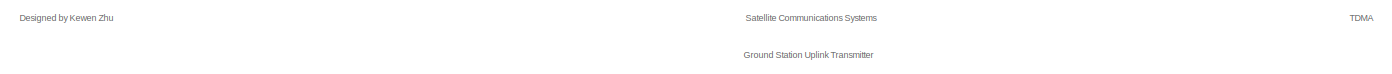
[diagram: root canvas - part 1/2, full width, top band]
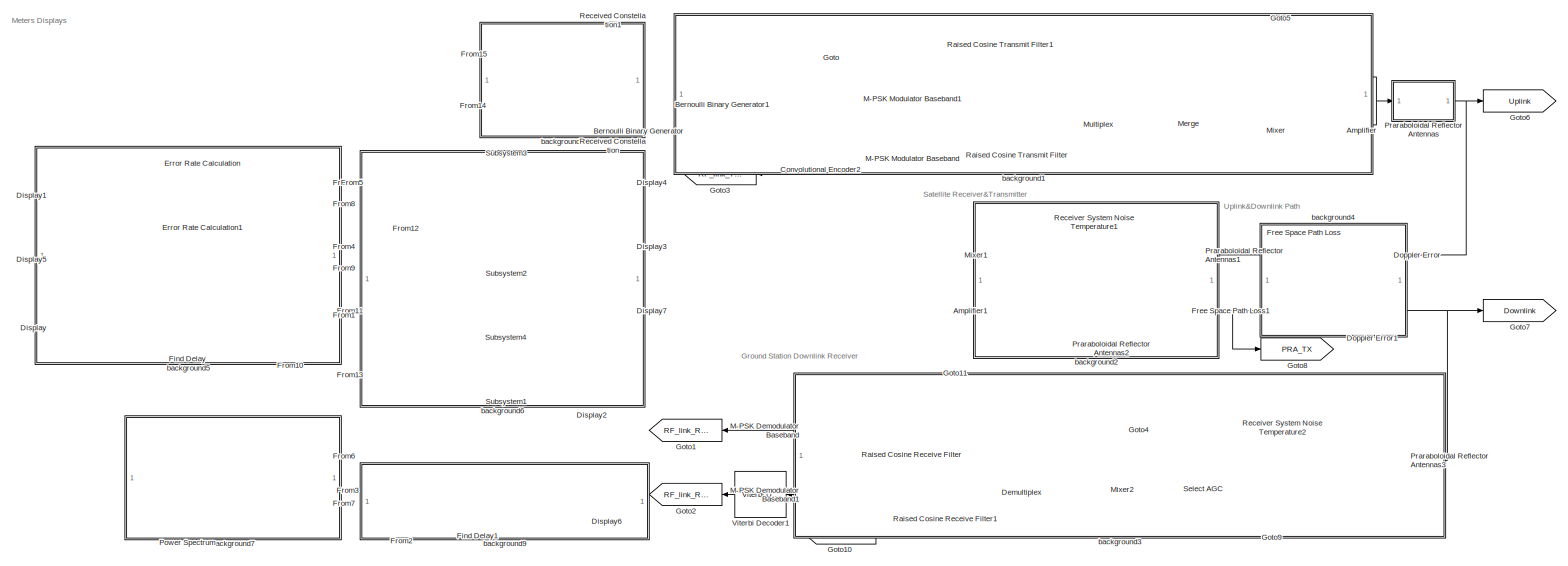
[diagram: root canvas - part 2/2, most of the canvas]
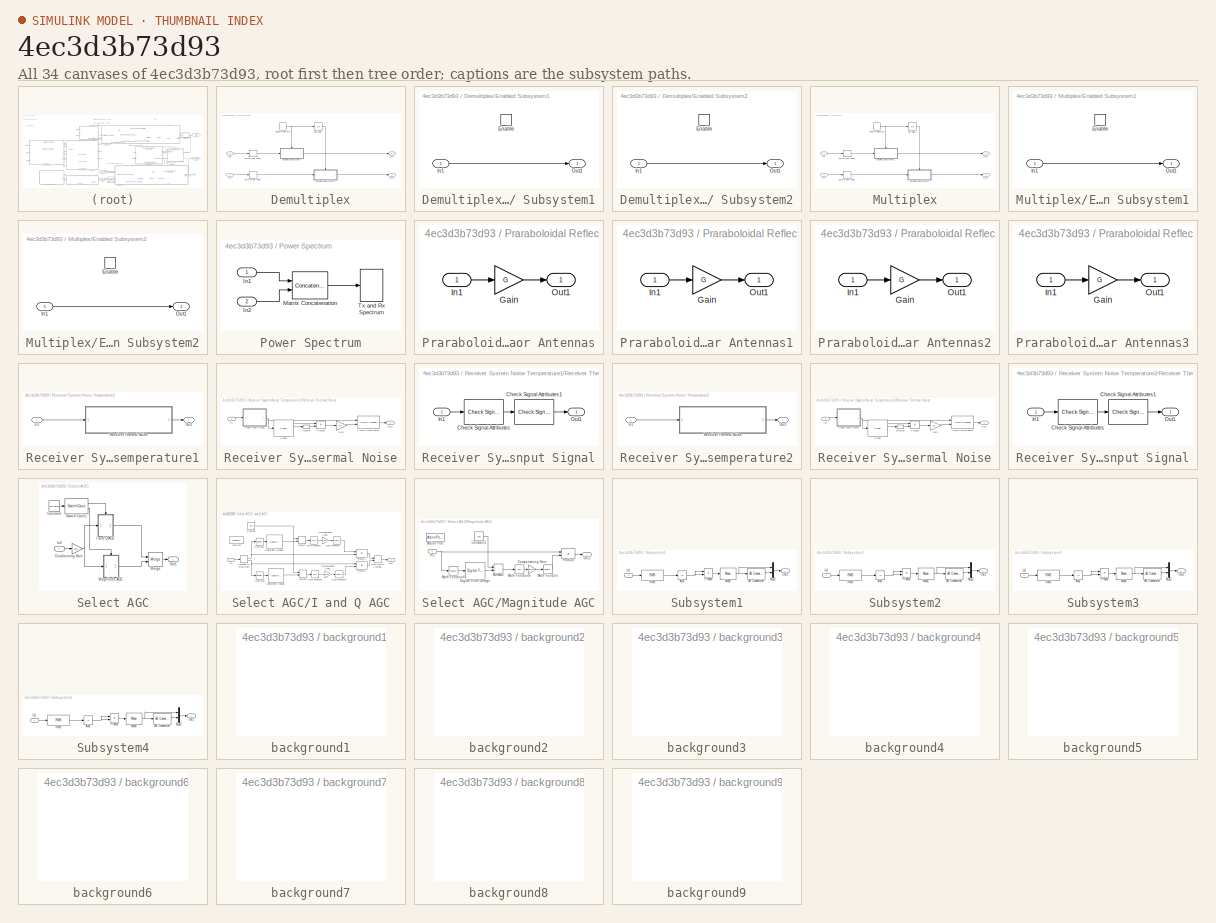
[diagram: thumbnail index - all 34 canvases of the model, root first then tree order]
MODEL slx_4ec3d3b73d93
KIND model
CONFIG AbsTol = auto
CONFIG EnableMultiTasking = on
CONFIG FixedStep = auto
CONFIG MaxStep = auto
CONFIG MinStep = auto
CONFIG RelTol = 1e-3
CONFIG SampleTimeConstraint = Unconstrained
CONFIG Solver = ode45
CONFIG SolverName = ode45
CONFIG StartTime = 0.0
CONFIG StopTime = inf
BLOCK [Reference] Amplifier  REF=rfmathmodels1/Amplifier
  Ports = [1, 1]
  SourceBlock = rfmathmodels1/Amplifier
  SourceProductBaseCode = RB
  SourceProductName = RF Blockset
  SourceType = Amplifier
BLOCK [Reference] Amplifier1  REF=rfmathmodels1/Amplifier
  Ports = [1, 1]
  SourceBlock = rfmathmodels1/Amplifier
  SourceProductBaseCode = RB
  SourceProductName = RF Blockset
  SourceType = Amplifier
BLOCK [Reference] Bernoulli Binary Generator  REF=commrandsrc2/Bernoulli Binary
Generator
  Ports = [0, 1]
  SourceBlock = commrandsrc2/Bernoulli Binary\nGenerator
  SourceProductBaseCode = CM
  SourceProductName = Communications Toolbox
  SourceType = Bernoulli Binary Generator
BLOCK [Reference] Bernoulli Binary Generator1  REF=commrandsrc2/Bernoulli Binary
Generator
  Ports = [0, 1]
  SourceBlock = commrandsrc2/Bernoulli Binary\nGenerator
  SourceProductBaseCode = CM
  SourceProductName = Communications Toolbox
  SourceType = Bernoulli Binary Generator
BLOCK [Reference] Convolutional Encoder2  REF=commcnvcod2/Convolutional
Encoder
  Ports = [1, 1]
  SourceBlock = commcnvcod2/Convolutional\nEncoder
  SourceProductBaseCode = CM
  SourceProductName = Communications Toolbox
  SourceType = Convolutional Encoder
BLOCK [SubSystem] Demultiplex
  Ports = [2, 2]
  RequestExecContextInheritance = off
BLOCK [SubSystem] Demultiplex/Enabled Subsystem1
  Ports = [1, 1, 1]
  RequestExecContextInheritance = off
  TreatAsAtomicUnit = on
BLOCK [EnablePort] Demultiplex/Enabled Subsystem1/Enable
  Ports = []
BLOCK [Inport] Demultiplex/Enabled Subsystem1/In1
  IconDisplay = Port number
BLOCK [Outport] Demultiplex/Enabled Subsystem1/Out1
  IconDisplay = Port number
BLOCK [SubSystem] Demultiplex/Enabled Subsystem2
  Ports = [1, 1, 1]
  RequestExecContextInheritance = off
  TreatAsAtomicUnit = on
BLOCK [EnablePort] Demultiplex/Enabled Subsystem2/Enable
  Ports = []
BLOCK [Inport] Demultiplex/Enabled Subsystem2/In1
  IconDisplay = Port number
BLOCK [Outport] Demultiplex/Enabled Subsystem2/Out1
  IconDisplay = Port number
BLOCK [Inport] Demultiplex/In1
  IconDisplay = Port number
BLOCK [Inport] Demultiplex/In2
  IconDisplay = Port number
  Port = 2
BLOCK [Outport] Demultiplex/Out1
  IconDisplay = Port number
BLOCK [Outport] Demultiplex/Out2
  IconDisplay = Port number
  Port = 2
BLOCK [DiscretePulseGenerator] Demultiplex/Pulse Generator
  Period = 3
  Ports = [0, 1]
  SampleTime = 0.001
BLOCK [UnitDelay] Demultiplex/Unit Delay
  SampleTime = 0.001
BLOCK [ZeroOrderHold] Demultiplex/Zero-Order Hold1
  SampleTime = 0.001
BLOCK [ZeroOrderHold] Demultiplex/Zero-Order Hold2
  SampleTime = 0.001
BLOCK [Display] Display
  Decimation = 1
  Ports = [1]
BLOCK [Display] Display1
  Decimation = 1
  Ports = [1]
BLOCK [Display] Display2
  Decimation = 1
  Ports = [1]
BLOCK [Display] Display3
  Decimation = 1
  Ports = [1]
BLOCK [Display] Display4
  Decimation = 1
  Ports = [1]
BLOCK [Display] Display5
  Decimation = 1
  Ports = [1]
BLOCK [Display] Display6
  Decimation = 1
  Ports = [1]
BLOCK [Display] Display7
  Decimation = 1
  Ports = [1]
BLOCK [Reference] Doppler Error  REF=commrflib2/Phase//
Frequency
Offset
  Ports = [1, 1]
  SourceBlock = commrflib2/Phase//\nFrequency\nOffset
  SourceProductBaseCode = CM
  SourceProductName = Communications Toolbox
  SourceType = Phase/Frequency Offset
BLOCK [Reference] Doppler Error1  REF=commrflib2/Phase//
Frequency
Offset
  Ports = [1, 1]
  SourceBlock = commrflib2/Phase//\nFrequency\nOffset
  SourceProductBaseCode = CM
  SourceProductName = Communications Toolbox
  SourceType = Phase/Frequency Offset
BLOCK [Reference] Error Rate Calculation  REF=commsink2/Error Rate
Calculation
  Ports = [2, 1]
  SourceBlock = commsink2/Error Rate\nCalculation
  SourceProductBaseCode = CM
  SourceProductName = Communications Toolbox
  SourceType = Error Rate Calculation
BLOCK [Reference] Error Rate Calculation1  REF=commsink2/Error Rate
Calculation
  Ports = [2, 1]
  SourceBlock = commsink2/Error Rate\nCalculation
  SourceProductBaseCode = CM
  SourceProductName = Communications Toolbox
  SourceType = Error Rate Calculation
BLOCK [Reference] Find Delay  REF=commutil2/Find Delay
  Ports = [2, 1]
  SourceBlock = commutil2/Find Delay
  SourceProductBaseCode = CM
  SourceProductName = Communications Toolbox
  SourceType = Find Delay
BLOCK [Reference] Find Delay1  REF=commutil2/Find Delay
  Ports = [2, 1]
  SourceBlock = commutil2/Find Delay
  SourceProductBaseCode = CM
  SourceProductName = Communications Toolbox
  SourceType = Find Delay
BLOCK [Reference] Free Space Path Loss  REF=commrflib2/Free Space
Path Loss
  Ports = [1, 1]
  SourceBlock = commrflib2/Free Space\nPath Loss
  SourceProductBaseCode = CM
  SourceProductName = Communications Toolbox
  SourceType = Free Space Path Loss
BLOCK [Reference] Free Space Path Loss1  REF=commrflib2/Free Space
Path Loss
  Ports = [1, 1]
  SourceBlock = commrflib2/Free Space\nPath Loss
  SourceProductBaseCode = CM
  SourceProductName = Communications Toolbox
  SourceType = Free Space Path Loss
BLOCK [From] From
  GotoTag = RF_link_TX1
BLOCK [From] From1
  GotoTag = RF_link_TX1
BLOCK [From] From10
  GotoTag = RF_link_RX1
BLOCK [From] From11
  GotoTag = Downlink
BLOCK [From] From12
  GotoTag = PRA_TX
BLOCK [From] From13
  GotoTag = PRA_RX
BLOCK [From] From14
  GotoTag = RX2_const
BLOCK [From] From15
  GotoTag = RX1_const
BLOCK [From] From2
  GotoTag = RF_link_TX1
BLOCK [From] From3
  GotoTag = RF_link_TX2
BLOCK [From] From4
  GotoTag = RF_link_TX2
BLOCK [From] From5
  GotoTag = Uplink
BLOCK [From] From6
  GotoTag = TX_FDMA
BLOCK [From] From7
  GotoTag = RX_FDMA
BLOCK [From] From8
  GotoTag = RF_link_RX1
BLOCK [From] From9
  GotoTag = RF_link_RX2
BLOCK [Goto] Goto
  GotoTag = RF_link_TX1
BLOCK [Goto] Goto1
  GotoTag = RF_link_RX1
BLOCK [Goto] Goto10
  GotoTag = RX2_const
BLOCK [Goto] Goto11
  GotoTag = RX1_const
BLOCK [Goto] Goto2
  GotoTag = RF_link_RX2
BLOCK [Goto] Goto3
  GotoTag = RF_link_TX2
BLOCK [Goto] Goto4
  GotoTag = RX_FDMA
BLOCK [Goto] Goto5
  GotoTag = TX_FDMA
BLOCK [Goto] Goto6
  GotoTag = Uplink
BLOCK [Goto] Goto7
  GotoTag = Downlink
BLOCK [Goto] Goto8
  GotoTag = PRA_TX
BLOCK [Goto] Goto9
  GotoTag = PRA_RX
BLOCK [Reference] M-PSK Demodulator Baseband  REF=commdigbbndpm3/M-PSK
Demodulator
Baseband
  Ports = [1, 1]
  SourceBlock = commdigbbndpm3/M-PSK\nDemodulator\nBaseband
  SourceProductBaseCode = CM
  SourceProductName = Communications Toolbox
  SourceType = M-PSK Demodulator Baseband
BLOCK [Reference] M-PSK Demodulator Baseband1  REF=commdigbbndpm3/M-PSK
Demodulator
Baseband
  Ports = [1, 1]
  SourceBlock = commdigbbndpm3/M-PSK\nDemodulator\nBaseband
  SourceProductBaseCode = CM
  SourceProductName = Communications Toolbox
  SourceType = M-PSK Demodulator Baseband
BLOCK [Reference] M-PSK Modulator Baseband  REF=commdigbbndpm3/M-PSK
Modulator
Baseband
  Ports = [1, 1]
  SourceBlock = commdigbbndpm3/M-PSK\nModulator\nBaseband
  SourceProductBaseCode = CM
  SourceProductName = Communications Toolbox
  SourceType = M-PSK Modulator Baseband
BLOCK [Reference] M-PSK Modulator Baseband1  REF=commdigbbndpm3/M-PSK
Modulator
Baseband
  Ports = [1, 1]
  SourceBlock = commdigbbndpm3/M-PSK\nModulator\nBaseband
  SourceProductBaseCode = CM
  SourceProductName = Communications Toolbox
  SourceType = M-PSK Modulator Baseband
BLOCK [Merge] Merge
  Ports = [2, 1]
BLOCK [Reference] Mixer  REF=rfmathmodels1/Mixer
  Ports = [1, 1]
  SourceBlock = rfmathmodels1/Mixer
  SourceProductBaseCode = RB
  SourceProductName = RF Blockset
  SourceType = Mixer
BLOCK [Reference] Mixer1  REF=rfmathmodels1/Mixer
  Ports = [1, 1]
  SourceBlock = rfmathmodels1/Mixer
  SourceProductBaseCode = RB
  SourceProductName = RF Blockset
  SourceType = Mixer
BLOCK [Reference] Mixer2  REF=rfmathmodels1/Mixer
  Ports = [1, 1]
  SourceBlock = rfmathmodels1/Mixer
  SourceProductBaseCode = RB
  SourceProductName = RF Blockset
  SourceType = Mixer
BLOCK [SubSystem] Multiplex
  Ports = [2, 2]
  RequestExecContextInheritance = off
BLOCK [SubSystem] Multiplex/Enabled Subsystem1
  Ports = [1, 1, 1]
  RequestExecContextInheritance = off
  TreatAsAtomicUnit = on
BLOCK [EnablePort] Multiplex/Enabled Subsystem1/Enable
  Ports = []
BLOCK [Inport] Multiplex/Enabled Subsystem1/In1
  IconDisplay = Port number
BLOCK [Outport] Multiplex/Enabled Subsystem1/Out1
  IconDisplay = Port number
BLOCK [SubSystem] Multiplex/Enabled Subsystem2
  Ports = [1, 1, 1]
  RequestExecContextInheritance = off
  TreatAsAtomicUnit = on
BLOCK [EnablePort] Multiplex/Enabled Subsystem2/Enable
  Ports = []
BLOCK [Inport] Multiplex/Enabled Subsystem2/In1
  IconDisplay = Port number
BLOCK [Outport] Multiplex/Enabled Subsystem2/Out1
  IconDisplay = Port number
BLOCK [Inport] Multiplex/In1
  IconDisplay = Port number
BLOCK [Inport] Multiplex/In2
  IconDisplay = Port number
  Port = 2
BLOCK [Outport] Multiplex/Out1
  IconDisplay = Port number
BLOCK [Outport] Multiplex/Out2
  IconDisplay = Port number
  Port = 2
BLOCK [DiscretePulseGenerator] Multiplex/Pulse Generator
  Period = 3
  Ports = [0, 1]
  SampleTime = 0.001
BLOCK [UnitDelay] Multiplex/Unit Delay
  SampleTime = 0.001
BLOCK [ZeroOrderHold] Multiplex/Zero-Order Hold1
  SampleTime = 0.001
BLOCK [ZeroOrderHold] Multiplex/Zero-Order Hold2
  SampleTime = 0.001
BLOCK [SubSystem] Power Spectrum
  Ports = [2]
  RequestExecContextInheritance = off
  TreatAsAtomicUnit = on
BLOCK [Inport] Power Spectrum/In1
  IconDisplay = Port number
BLOCK [Inport] Power Spectrum/In2
  IconDisplay = Port number
  Port = 2
BLOCK [Concatenate] Power Spectrum/Matrix Concatenation
  ConcatenateDimension = 2
  Mode = Multidimensional array
  Ports = [2, 1]
BLOCK [SpectrumAnalyzer] Power Spectrum/Tx and Rx Spectrum
  AttributesFormatString = \n
  Ports = [1]
  ScopeSpecificationString = spbscopes.SpectrumAnalyzerBlockCfg('CurrentConfiguration', extmgr.ConfigurationSet(extmgr.Configuration('Core','General UI',true),extmgr.Configuration('Core','Source UI',true),extmgr.Configuration('Sources','WiredSimulink',true),extmgr.Configuration('Visuals','Spectrum',true,'AxesProperties',struct('Color',{[0 0 0],[0 0 0]},'XColor',{[0.686274509803922 0.686274509803922 0.686274509803922],[0.68627...<+3188ch>
BLOCK [SubSystem] Praraboloidal Reflector Antennas
  Ports = [1, 1]
  RequestExecContextInheritance = off
BLOCK [Gain] Praraboloidal Reflector Antennas/Gain
  Gain = G
  OutDataTypeStr = Inherit: Inherit via internal rule
  ParamDataTypeStr = Inherit: Inherit via internal rule
  SaturateOnIntegerOverflow = off
BLOCK [Inport] Praraboloidal Reflector Antennas/In1
  IconDisplay = Port number
BLOCK [Outport] Praraboloidal Reflector Antennas/Out1
  IconDisplay = Port number
BLOCK [SubSystem] Praraboloidal Reflector Antennas1
  Ports = [1, 1]
  RequestExecContextInheritance = off
BLOCK [Gain] Praraboloidal Reflector Antennas1/Gain
  Gain = G
  OutDataTypeStr = Inherit: Inherit via internal rule
  ParamDataTypeStr = Inherit: Inherit via internal rule
  SaturateOnIntegerOverflow = off
BLOCK [Inport] Praraboloidal Reflector Antennas1/In1
  IconDisplay = Port number
BLOCK [Outport] Praraboloidal Reflector Antennas1/Out1
  IconDisplay = Port number
BLOCK [SubSystem] Praraboloidal Reflector Antennas2
  Ports = [1, 1]
  RequestExecContextInheritance = off
BLOCK [Gain] Praraboloidal Reflector Antennas2/Gain
  Gain = G
  OutDataTypeStr = Inherit: Inherit via internal rule
  ParamDataTypeStr = Inherit: Inherit via internal rule
  SaturateOnIntegerOverflow = off
BLOCK [Inport] Praraboloidal Reflector Antennas2/In1
  IconDisplay = Port number
BLOCK [Outport] Praraboloidal Reflector Antennas2/Out1
  IconDisplay = Port number
BLOCK [SubSystem] Praraboloidal Reflector Antennas3
  Ports = [1, 1]
  RequestExecContextInheritance = off
BLOCK [Gain] Praraboloidal Reflector Antennas3/Gain
  Gain = G
  OutDataTypeStr = Inherit: Inherit via internal rule
  ParamDataTypeStr = Inherit: Inherit via internal rule
  SaturateOnIntegerOverflow = off
BLOCK [Inport] Praraboloidal Reflector Antennas3/In1
  IconDisplay = Port number
BLOCK [Outport] Praraboloidal Reflector Antennas3/Out1
  IconDisplay = Port number
BLOCK [Reference] Raised Cosine Receive Filter  REF=commfilt2/Raised Cosine
Receive Filter
  Ports = [1, 1]
  SourceBlock = commfilt2/Raised Cosine\nReceive Filter
  SourceProductBaseCode = CM
  SourceProductName = Communications Toolbox
  SourceType = Raised Cosine Receive Filter
  UserDataPersistent = on
BLOCK [Reference] Raised Cosine Receive Filter1  REF=commfilt2/Raised Cosine
Receive Filter
  Ports = [1, 1]
  SourceBlock = commfilt2/Raised Cosine\nReceive Filter
  SourceProductBaseCode = CM
  SourceProductName = Communications Toolbox
  SourceType = Raised Cosine Receive Filter
  UserDataPersistent = on
BLOCK [Reference] Raised Cosine Transmit Filter  REF=commfilt2/Raised Cosine
Transmit Filter
  Ports = [1, 1]
  SourceBlock = commfilt2/Raised Cosine\nTransmit Filter
  SourceProductBaseCode = CM
  SourceProductName = Communications Toolbox
  SourceType = Raised Cosine Transmit Filter
  UserDataPersistent = on
BLOCK [Reference] Raised Cosine Transmit Filter1  REF=commfilt2/Raised Cosine
Transmit Filter
  Ports = [1, 1]
  SourceBlock = commfilt2/Raised Cosine\nTransmit Filter
  SourceProductBaseCode = CM
  SourceProductName = Communications Toolbox
  SourceType = Raised Cosine Transmit Filter
  UserDataPersistent = on
BLOCK [ConstellationDiagram] Received Constellation
  Ports = [1]
  ScopeSpecificationString = comm.scopes.ConstellationDiagramBlockCfg('CurrentConfiguration', extmgr.ConfigurationSet(extmgr.Configuration('Core','General UI',true,'ShowConfiguration',true),extmgr.Configuration('Core','Source UI',true,'ShowPlaybackCmdMode',false),extmgr.Configuration('Sources','WiredSimulink',true),extmgr.Configuration('Sources','Workspace',false),extmgr.Configuration('Sources','Simulink',false),extmgr.Config...<+2281ch>
  Tag = ScatterPlot
BLOCK [ConstellationDiagram] Received Constellation1
  Ports = [1]
  ScopeSpecificationString = comm.scopes.ConstellationDiagramBlockCfg('CurrentConfiguration', extmgr.ConfigurationSet(extmgr.Configuration('Core','General UI',true,'ShowConfiguration',true),extmgr.Configuration('Core','Source UI',true,'ShowPlaybackCmdMode',false),extmgr.Configuration('Sources','WiredSimulink',true),extmgr.Configuration('Sources','Workspace',false),extmgr.Configuration('Sources','Simulink',false),extmgr.Config...<+2231ch>
  Tag = ScatterPlot
BLOCK [SubSystem] Receiver System Noise Temperature1
  AncestorBlock = xd/RF/Receiver System\nNoise Temperature
  Ports = [1, 1]
  RequestExecContextInheritance = off
  TreatAsAtomicUnit = on
BLOCK [Inport] Receiver System Noise Temperature1/In1
  IconDisplay = Port number
BLOCK [Outport] Receiver System Noise Temperature1/Out1
  IconDisplay = Port number
BLOCK [SubSystem] Receiver System Noise Temperature1/Receiver Thermal Noise
  AncestorBlock = commrflib2/Receiver\nThermal Noise
  Ports = [1, 1]
  RequestExecContextInheritance = off
BLOCK [Reference] Receiver System Noise Temperature1/Receiver Thermal Noise/AWGN Noise Temp  REF=commchan3/AWGN
Channel
  Ports = [2, 1]
  SourceBlock = commchan3/AWGN\nChannel
  SourceProductBaseCode = CM
  SourceProductName = Communications Toolbox
  SourceType = AWGN Channel
  UserDataPersistent = on
BLOCK [SubSystem] Receiver System Noise Temperature1/Receiver Thermal Noise/Check Input Signal
  Ports = [1, 1]
  RequestExecContextInheritance = off
BLOCK [Reference] Receiver System Noise Temperature1/Receiver Thermal Noise/Check Input Signal/Check Signal Attributes  REF=dspsigattribs/Check Signal
Attributes
  Ports = [1, 1]
  SourceBlock = dspsigattribs/Check Signal\nAttributes
  SourceProductBaseCode = DS
  SourceProductName = DSP System Toolbox
  SourceType = Check Signal Attributes
BLOCK [Reference] Receiver System Noise Temperature1/Receiver Thermal Noise/Check Input Signal/Check Signal Attributes1  REF=dspsigattribs/Check Signal
Attributes
  Ports = [1, 1]
  SourceBlock = dspsigattribs/Check Signal\nAttributes
  SourceProductBaseCode = DS
  SourceProductName = DSP System Toolbox
  SourceType = Check Signal Attributes
BLOCK [Inport] Receiver System Noise Temperature1/Receiver Thermal Noise/Check Input Signal/In1
  IconDisplay = Port number
BLOCK [Outport] Receiver System Noise Temperature1/Receiver Thermal Noise/Check Input Signal/Out1
  IconDisplay = Port number
BLOCK [Gain] Receiver System Noise Temperature1/Receiver Thermal Noise/Gain
  Gain = kT
BLOCK [Inport] Receiver System Noise Temperature1/Receiver Thermal Noise/In1
  IconDisplay = Port number
BLOCK [Outport] Receiver System Noise Temperature1/Receiver Thermal Noise/Out1
  IconDisplay = Port number
BLOCK [Probe] Receiver System Noise Temperature1/Receiver Thermal Noise/Probe
  Ports = [1, 2]
  ProbeComplexSignal = off
  ProbeSampleTimeDataType = Same as input
  ProbeWidthDataType = Same as input
BLOCK [Product] Receiver System Noise Temperature1/Receiver Thermal Noise/Product
  Inputs = */
  Ports = [2, 1]
  RndMeth = Floor
BLOCK [Selector] Receiver System Noise Temperature1/Receiver Thermal Noise/Selector
  IndexOptions = Index vector (dialog)
  Indices = 1
  InputPortWidth = 2
  OutputSizes = 1
  Ports = [1, 1]
BLOCK [SubSystem] Receiver System Noise Temperature2
  AncestorBlock = xd/RF/Receiver System\nNoise Temperature
  Ports = [1, 1]
  RequestExecContextInheritance = off
  TreatAsAtomicUnit = on
BLOCK [Inport] Receiver System Noise Temperature2/In1
  IconDisplay = Port number
BLOCK [Outport] Receiver System Noise Temperature2/Out1
  IconDisplay = Port number
BLOCK [SubSystem] Receiver System Noise Temperature2/Receiver Thermal Noise
  AncestorBlock = commrflib2/Receiver\nThermal Noise
  Ports = [1, 1]
  RequestExecContextInheritance = off
BLOCK [Reference] Receiver System Noise Temperature2/Receiver Thermal Noise/AWGN Noise Temp  REF=commchan3/AWGN
Channel
  Ports = [2, 1]
  SourceBlock = commchan3/AWGN\nChannel
  SourceProductBaseCode = CM
  SourceProductName = Communications Toolbox
  SourceType = AWGN Channel
  UserDataPersistent = on
BLOCK [SubSystem] Receiver System Noise Temperature2/Receiver Thermal Noise/Check Input Signal
  Ports = [1, 1]
  RequestExecContextInheritance = off
BLOCK [Reference] Receiver System Noise Temperature2/Receiver Thermal Noise/Check Input Signal/Check Signal Attributes  REF=dspsigattribs/Check Signal
Attributes
  Ports = [1, 1]
  SourceBlock = dspsigattribs/Check Signal\nAttributes
  SourceProductBaseCode = DS
  SourceProductName = DSP System Toolbox
  SourceType = Check Signal Attributes
BLOCK [Reference] Receiver System Noise Temperature2/Receiver Thermal Noise/Check Input Signal/Check Signal Attributes1  REF=dspsigattribs/Check Signal
Attributes
  Ports = [1, 1]
  SourceBlock = dspsigattribs/Check Signal\nAttributes
  SourceProductBaseCode = DS
  SourceProductName = DSP System Toolbox
  SourceType = Check Signal Attributes
BLOCK [Inport] Receiver System Noise Temperature2/Receiver Thermal Noise/Check Input Signal/In1
  IconDisplay = Port number
BLOCK [Outport] Receiver System Noise Temperature2/Receiver Thermal Noise/Check Input Signal/Out1
  IconDisplay = Port number
BLOCK [Gain] Receiver System Noise Temperature2/Receiver Thermal Noise/Gain
  Gain = kT
BLOCK [Inport] Receiver System Noise Temperature2/Receiver Thermal Noise/In1
  IconDisplay = Port number
BLOCK [Outport] Receiver System Noise Temperature2/Receiver Thermal Noise/Out1
  IconDisplay = Port number
BLOCK [Probe] Receiver System Noise Temperature2/Receiver Thermal Noise/Probe
  Ports = [1, 2]
  ProbeComplexSignal = off
  ProbeSampleTimeDataType = Same as input
  ProbeWidthDataType = Same as input
BLOCK [Product] Receiver System Noise Temperature2/Receiver Thermal Noise/Product
  Inputs = */
  Ports = [2, 1]
  RndMeth = Floor
BLOCK [Selector] Receiver System Noise Temperature2/Receiver Thermal Noise/Selector
  IndexOptions = Index vector (dialog)
  Indices = 1
  InputPortWidth = 2
  OutputSizes = 1
  Ports = [1, 1]
BLOCK [SubSystem] Select AGC
  Ports = [1, 1]
  RequestExecContextInheritance = off
BLOCK [Gain] Select AGC/Conditioning Gain
  Gain = 1e6
BLOCK [Constant] Select AGC/Constant
  Value = selValue
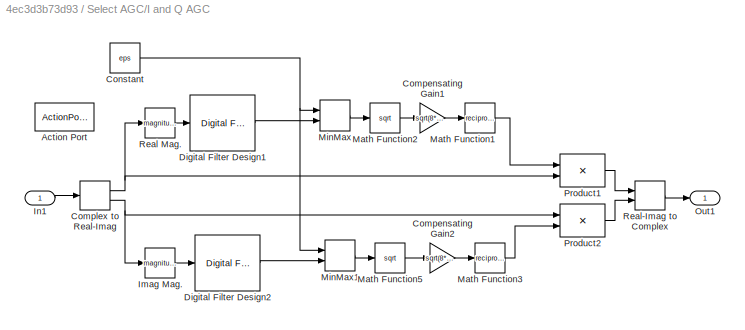
BLOCK [SubSystem] Select AGC/I and Q AGC
  Ports = [1, 1, 0, 0, 0, 0, 0, 1]
  RequestExecContextInheritance = off
  TreatAsAtomicUnit = on
BLOCK [ActionPort] Select AGC/I and Q AGC/Action Port
  ActionPortLabel = case [ 1 ]:
  PropagateVarSize = During execution
BLOCK [Gain] Select AGC/I and Q AGC/Compensating Gain1
  Gain = sqrt(8*2)
BLOCK [Gain] Select AGC/I and Q AGC/Compensating Gain2
  Gain = sqrt(8*2)
BLOCK [ComplexToRealImag] Select AGC/I and Q AGC/Complex to Real-Imag
  Ports = [1, 2]
BLOCK [Constant] Select AGC/I and Q AGC/Constant
  FramePeriod = -1
  SamplingMode = Frame based
  Value = eps
  VectorParams1D = off
BLOCK [Reference] Select AGC/I and Q AGC/Digital Filter Design1  REF=dsparch4/Digital
Filter Design
  Ports = [1, 1]
  SourceBlock = dsparch4/Digital\nFilter Design
  SourceProductBaseCode = DS
  SourceProductName = DSP System Toolbox
  SourceType = Digital Filter Design
  UserDataPersistent = on
BLOCK [Reference] Select AGC/I and Q AGC/Digital Filter Design2  REF=dsparch4/Digital
Filter Design
  Ports = [1, 1]
  SourceBlock = dsparch4/Digital\nFilter Design
  SourceProductBaseCode = DS
  SourceProductName = DSP System Toolbox
  SourceType = Digital Filter Design
  UserDataPersistent = on
BLOCK [Math] Select AGC/I and Q AGC/Imag Mag.
  Operator = magnitude^2
  Ports = [1, 1]
BLOCK [Inport] Select AGC/I and Q AGC/In1
  IconDisplay = Port number
BLOCK [Math] Select AGC/I and Q AGC/Math Function1
  Operator = reciprocal
  Ports = [1, 1]
BLOCK [Math] Select AGC/I and Q AGC/Math Function2
  Operator = sqrt
  Ports = [1, 1]
BLOCK [Math] Select AGC/I and Q AGC/Math Function3
  Operator = reciprocal
  Ports = [1, 1]
BLOCK [Math] Select AGC/I and Q AGC/Math Function5
  Operator = sqrt
  Ports = [1, 1]
BLOCK [MinMax] Select AGC/I and Q AGC/MinMax
  Function = max
  Inputs = 2
  Ports = [2, 1]
BLOCK [MinMax] Select AGC/I and Q AGC/MinMax1
  Function = max
  Inputs = 2
  Ports = [2, 1]
BLOCK [Outport] Select AGC/I and Q AGC/Out1
  IconDisplay = Port number
BLOCK [Product] Select AGC/I and Q AGC/Product1
  InputSameDT = off
  Ports = [2, 1]
  RndMeth = Floor
BLOCK [Product] Select AGC/I and Q AGC/Product2
  InputSameDT = off
  Ports = [2, 1]
  RndMeth = Floor
BLOCK [Math] Select AGC/I and Q AGC/Real Mag.
  Operator = magnitude^2
  Ports = [1, 1]
BLOCK [RealImagToComplex] Select AGC/I and Q AGC/Real-Imag to Complex
  Ports = [2, 1]
BLOCK [Inport] Select AGC/In2
  IconDisplay = Port number
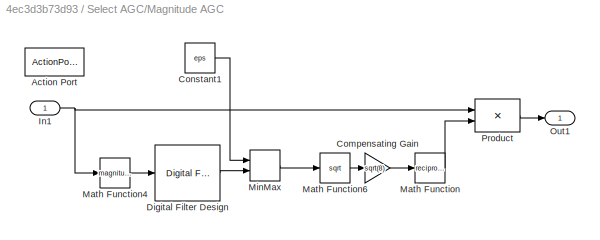
BLOCK [SubSystem] Select AGC/Magnitude AGC
  Ports = [1, 1, 0, 0, 0, 0, 0, 1]
  RequestExecContextInheritance = off
  TreatAsAtomicUnit = on
BLOCK [ActionPort] Select AGC/Magnitude AGC/Action Port
  ActionPortLabel = default:
  PropagateVarSize = During execution
BLOCK [Gain] Select AGC/Magnitude AGC/Compensating Gain
  Gain = sqrt(8)
BLOCK [Constant] Select AGC/Magnitude AGC/Constant1
  FramePeriod = -1
  SamplingMode = Frame based
  Value = eps
  VectorParams1D = off
BLOCK [Reference] Select AGC/Magnitude AGC/Digital Filter Design  REF=dsparch4/Digital
Filter Design
  Ports = [1, 1]
  SourceBlock = dsparch4/Digital\nFilter Design
  SourceProductBaseCode = DS
  SourceProductName = DSP System Toolbox
  SourceType = Digital Filter Design
  UserDataPersistent = on
BLOCK [Inport] Select AGC/Magnitude AGC/In1
  IconDisplay = Port number
BLOCK [Math] Select AGC/Magnitude AGC/Math Function
  Operator = reciprocal
  Ports = [1, 1]
BLOCK [Math] Select AGC/Magnitude AGC/Math Function4
  Operator = magnitude^2
  Ports = [1, 1]
BLOCK [Math] Select AGC/Magnitude AGC/Math Function6
  Operator = sqrt
  Ports = [1, 1]
BLOCK [MinMax] Select AGC/Magnitude AGC/MinMax
  Function = max
  Inputs = 2
  Ports = [2, 1]
BLOCK [Outport] Select AGC/Magnitude AGC/Out1
  IconDisplay = Port number
BLOCK [Product] Select AGC/Magnitude AGC/Product
  InputSameDT = off
  Ports = [2, 1]
  RndMeth = Floor
BLOCK [Merge] Select AGC/Merge
  InitialOutput = 0
  Ports = [2, 1]
BLOCK [Outport] Select AGC/Out1
  IconDisplay = Port number
BLOCK [SwitchCase] Select AGC/Switch Case1
  Ports = [1, 2]
BLOCK [SubSystem] Subsystem1
  Ports = [1, 1]
  RequestExecContextInheritance = off
BLOCK [Abs] Subsystem1/Abs
  SaturateOnIntegerOverflow = off
BLOCK [Inport] Subsystem1/In1
  IconDisplay = Port number
BLOCK [Reference] Subsystem1/Mean  REF=dspstat3/Mean
  Ports = [1, 1]
  SourceBlock = dspstat3/Mean
  SourceProductBaseCode = DS
  SourceProductName = DSP System Toolbox
  SourceType = Mean
  UserDataPersistent = on
BLOCK [Mux] Subsystem1/Mux2
  DisplayOption = bar
  Inputs = 2
  Ports = [2, 1]
BLOCK [Outport] Subsystem1/Out2
  IconDisplay = Port number
BLOCK [Product] Subsystem1/Product
  InputSameDT = off
  OutDataTypeStr = Inherit: Inherit via internal rule
  Ports = [2, 1]
  RndMeth = Floor
  SaturateOnIntegerOverflow = off
BLOCK [Reference] Subsystem1/RMS  REF=dspstat3/RMS
  Ports = [1, 1]
  SourceBlock = dspstat3/RMS
  SourceProductBaseCode = DS
  SourceProductName = DSP System Toolbox
  SourceType = RMS
  UserDataPersistent = on
BLOCK [Reference] Subsystem1/dB Conversion  REF=dspmathops/dB Conversion
  Ports = [1, 1]
  SourceBlock = dspmathops/dB Conversion
  SourceProductBaseCode = DS
  SourceProductName = DSP System Toolbox
  SourceType = dB Conversion
BLOCK [SubSystem] Subsystem2
  Ports = [1, 1]
  RequestExecContextInheritance = off
BLOCK [Abs] Subsystem2/Abs
  SaturateOnIntegerOverflow = off
BLOCK [Inport] Subsystem2/In1
  IconDisplay = Port number
BLOCK [Reference] Subsystem2/Mean  REF=dspstat3/Mean
  Ports = [1, 1]
  SourceBlock = dspstat3/Mean
  SourceProductBaseCode = DS
  SourceProductName = DSP System Toolbox
  SourceType = Mean
  UserDataPersistent = on
BLOCK [Mux] Subsystem2/Mux2
  DisplayOption = bar
  Inputs = 2
  Ports = [2, 1]
BLOCK [Outport] Subsystem2/Out2
  IconDisplay = Port number
BLOCK [Product] Subsystem2/Product
  InputSameDT = off
  OutDataTypeStr = Inherit: Inherit via internal rule
  Ports = [2, 1]
  RndMeth = Floor
  SaturateOnIntegerOverflow = off
BLOCK [Reference] Subsystem2/RMS  REF=dspstat3/RMS
  Ports = [1, 1]
  SourceBlock = dspstat3/RMS
  SourceProductBaseCode = DS
  SourceProductName = DSP System Toolbox
  SourceType = RMS
  UserDataPersistent = on
BLOCK [Reference] Subsystem2/dB Conversion  REF=dspmathops/dB Conversion
  Ports = [1, 1]
  SourceBlock = dspmathops/dB Conversion
  SourceProductBaseCode = DS
  SourceProductName = DSP System Toolbox
  SourceType = dB Conversion
BLOCK [SubSystem] Subsystem3
  Ports = [1, 1]
  RequestExecContextInheritance = off
BLOCK [Abs] Subsystem3/Abs
  SaturateOnIntegerOverflow = off
BLOCK [Inport] Subsystem3/In1
  IconDisplay = Port number
BLOCK [Reference] Subsystem3/Mean  REF=dspstat3/Mean
  Ports = [1, 1]
  SourceBlock = dspstat3/Mean
  SourceProductBaseCode = DS
  SourceProductName = DSP System Toolbox
  SourceType = Mean
  UserDataPersistent = on
BLOCK [Mux] Subsystem3/Mux2
  DisplayOption = bar
  Inputs = 2
  Ports = [2, 1]
BLOCK [Outport] Subsystem3/Out2
  IconDisplay = Port number
BLOCK [Product] Subsystem3/Product
  InputSameDT = off
  OutDataTypeStr = Inherit: Inherit via internal rule
  Ports = [2, 1]
  RndMeth = Floor
  SaturateOnIntegerOverflow = off
BLOCK [Reference] Subsystem3/RMS  REF=dspstat3/RMS
  Ports = [1, 1]
  SourceBlock = dspstat3/RMS
  SourceProductBaseCode = DS
  SourceProductName = DSP System Toolbox
  SourceType = RMS
  UserDataPersistent = on
BLOCK [Reference] Subsystem3/dB Conversion  REF=dspmathops/dB Conversion
  Ports = [1, 1]
  SourceBlock = dspmathops/dB Conversion
  SourceProductBaseCode = DS
  SourceProductName = DSP System Toolbox
  SourceType = dB Conversion
BLOCK [SubSystem] Subsystem4
  Ports = [1, 1]
  RequestExecContextInheritance = off
BLOCK [Abs] Subsystem4/Abs
  SaturateOnIntegerOverflow = off
BLOCK [Inport] Subsystem4/In1
  IconDisplay = Port number
BLOCK [Reference] Subsystem4/Mean  REF=dspstat3/Mean
  Ports = [1, 1]
  SourceBlock = dspstat3/Mean
  SourceProductBaseCode = DS
  SourceProductName = DSP System Toolbox
  SourceType = Mean
  UserDataPersistent = on
BLOCK [Mux] Subsystem4/Mux2
  DisplayOption = bar
  Inputs = 2
  Ports = [2, 1]
BLOCK [Outport] Subsystem4/Out2
  IconDisplay = Port number
BLOCK [Product] Subsystem4/Product
  InputSameDT = off
  OutDataTypeStr = Inherit: Inherit via internal rule
  Ports = [2, 1]
  RndMeth = Floor
  SaturateOnIntegerOverflow = off
BLOCK [Reference] Subsystem4/RMS  REF=dspstat3/RMS
  Ports = [1, 1]
  SourceBlock = dspstat3/RMS
  SourceProductBaseCode = DS
  SourceProductName = DSP System Toolbox
  SourceType = RMS
  UserDataPersistent = on
BLOCK [Reference] Subsystem4/dB Conversion  REF=dspmathops/dB Conversion
  Ports = [1, 1]
  SourceBlock = dspmathops/dB Conversion
  SourceProductBaseCode = DS
  SourceProductName = DSP System Toolbox
  SourceType = dB Conversion
BLOCK [Reference] Viterbi Decoder1  REF=commcnvcod2/Viterbi Decoder
  Ports = [1, 1]
  SourceBlock = commcnvcod2/Viterbi Decoder
  SourceProductBaseCode = CM
  SourceProductName = Communications Toolbox
  SourceType = Viterbi Decoder
BLOCK [SubSystem] background1
  Ports = []
  RequestExecContextInheritance = off
BLOCK [SubSystem] background2
  Ports = []
  RequestExecContextInheritance = off
BLOCK [SubSystem] background3
  Ports = []
  RequestExecContextInheritance = off
BLOCK [SubSystem] background4
  Ports = []
  RequestExecContextInheritance = off
BLOCK [SubSystem] background5
  Ports = []
  RequestExecContextInheritance = off
BLOCK [SubSystem] background6
  Ports = []
  RequestExecContextInheritance = off
BLOCK [SubSystem] background7
  Ports = []
  RequestExecContextInheritance = off
BLOCK [SubSystem] background8
  Ports = []
  RequestExecContextInheritance = off
BLOCK [SubSystem] background9
  Ports = []
  RequestExecContextInheritance = off
ANNOTATION (root): Designed by Kewen Zhu
ANNOTATION (root): Ground Station Downlink Receiver
ANNOTATION (root): Ground Station Uplink Transmitter
ANNOTATION (root): Meters Displays
ANNOTATION (root): Satellite Communications Systems
ANNOTATION (root): Satellite Receiver&Transmitter
ANNOTATION (root): TDMA
ANNOTATION (root): Uplink&Downlink Path
LINE Amplifier1:1 -> Praraboloidal Reflector Antennas2:1
LINE Amplifier:1 -> Praraboloidal Reflector Antennas:1
NET Bernoulli Binary Generator1:1 -> Goto:1, M-PSK Modulator Baseband1:1
NET Bernoulli Binary Generator:1 -> Convolutional Encoder2:1, Goto3:1
LINE Convolutional Encoder2:1 -> M-PSK Modulator Baseband:1
LINE Demultiplex/Enabled Subsystem1/In1:1 -> Demultiplex/Enabled Subsystem1/Out1:1
LINE Demultiplex/Enabled Subsystem1:1 -> Demultiplex/Out1:1
LINE Demultiplex/Enabled Subsystem2/In1:1 -> Demultiplex/Enabled Subsystem2/Out1:1
LINE Demultiplex/Enabled Subsystem2:1 -> Demultiplex/Out2:1
LINE Demultiplex/In1:1 -> Demultiplex/Zero-Order Hold1:1
LINE Demultiplex/In2:1 -> Demultiplex/Zero-Order Hold2:1
NET Demultiplex/Pulse Generator:1 -> Demultiplex/Enabled Subsystem1:enable, Demultiplex/Unit Delay:1
LINE Demultiplex/Unit Delay:1 -> Demultiplex/Enabled Subsystem2:enable
LINE Demultiplex/Zero-Order Hold1:1 -> Demultiplex/Enabled Subsystem1:1
LINE Demultiplex/Zero-Order Hold2:1 -> Demultiplex/Enabled Subsystem2:1
LINE Demultiplex:1 -> Raised Cosine Receive Filter:1
LINE Demultiplex:2 -> Raised Cosine Receive Filter1:1
NET Doppler Error1:1 -> Goto7:1, Praraboloidal Reflector Antennas3:1
LINE Doppler Error:1 -> Free Space Path Loss:1
LINE Error Rate Calculation1:1 -> Display5:1
LINE Error Rate Calculation:1 -> Display1:1
LINE Find Delay1:1 -> Display6:1
LINE Find Delay:1 -> Display:1
LINE Free Space Path Loss1:1 -> Doppler Error1:1
LINE Free Space Path Loss:1 -> Praraboloidal Reflector Antennas1:1
LINE From10:1 -> Find Delay:2
LINE From11:1 -> Subsystem4:1
LINE From12:1 -> Subsystem2:1
LINE From13:1 -> Subsystem1:1
LINE From14:1 -> Received Constellation:1
LINE From15:1 -> Received Constellation1:1
LINE From1:1 -> Find Delay:1
LINE From2:1 -> Find Delay1:2
LINE From3:1 -> Find Delay1:1
LINE From4:1 -> Error Rate Calculation1:1
LINE From5:1 -> Subsystem3:1
LINE From6:1 -> Power Spectrum:1
LINE From7:1 -> Power Spectrum:2
LINE From8:1 -> Error Rate Calculation:2
LINE From9:1 -> Error Rate Calculation1:2
LINE From:1 -> Error Rate Calculation:1
LINE M-PSK Demodulator Baseband1:1 -> Viterbi Decoder1:1
LINE M-PSK Demodulator Baseband:1 -> Goto1:1
LINE M-PSK Modulator Baseband1:1 -> Raised Cosine Transmit Filter1:1
LINE M-PSK Modulator Baseband:1 -> Raised Cosine Transmit Filter:1
NET Merge:1 -> Goto5:1, Mixer:1
LINE Mixer1:1 -> Amplifier1:1
NET Mixer2:1 -> Demultiplex:1, Demultiplex:2, Goto4:1
LINE Mixer:1 -> Amplifier:1
LINE Multiplex/Enabled Subsystem1/In1:1 -> Multiplex/Enabled Subsystem1/Out1:1
LINE Multiplex/Enabled Subsystem1:1 -> Multiplex/Out1:1
LINE Multiplex/Enabled Subsystem2/In1:1 -> Multiplex/Enabled Subsystem2/Out1:1
LINE Multiplex/Enabled Subsystem2:1 -> Multiplex/Out2:1
LINE Multiplex/In1:1 -> Multiplex/Zero-Order Hold1:1
LINE Multiplex/In2:1 -> Multiplex/Zero-Order Hold2:1
NET Multiplex/Pulse Generator:1 -> Multiplex/Enabled Subsystem1:enable, Multiplex/Unit Delay:1
LINE Multiplex/Unit Delay:1 -> Multiplex/Enabled Subsystem2:enable
LINE Multiplex/Zero-Order Hold1:1 -> Multiplex/Enabled Subsystem1:1
LINE Multiplex/Zero-Order Hold2:1 -> Multiplex/Enabled Subsystem2:1
LINE Multiplex:1 -> Merge:1
LINE Multiplex:2 -> Merge:2
LINE Power Spectrum/In1:1 -> Power Spectrum/Matrix Concatenation:1
LINE Power Spectrum/In2:1 -> Power Spectrum/Matrix Concatenation:2
LINE Power Spectrum/Matrix Concatenation:1 -> Power Spectrum/Tx and Rx Spectrum:1
LINE Praraboloidal Reflector Antennas/Gain:1 -> Praraboloidal Reflector Antennas/Out1:1
LINE Praraboloidal Reflector Antennas/In1:1 -> Praraboloidal Reflector Antennas/Gain:1
LINE Praraboloidal Reflector Antennas1/Gain:1 -> Praraboloidal Reflector Antennas1/Out1:1
LINE Praraboloidal Reflector Antennas1/In1:1 -> Praraboloidal Reflector Antennas1/Gain:1
LINE Praraboloidal Reflector Antennas1:1 -> Receiver System Noise Temperature1:1
LINE Praraboloidal Reflector Antennas2/Gain:1 -> Praraboloidal Reflector Antennas2/Out1:1
LINE Praraboloidal Reflector Antennas2/In1:1 -> Praraboloidal Reflector Antennas2/Gain:1
NET Praraboloidal Reflector Antennas2:1 -> Free Space Path Loss1:1, Goto8:1
LINE Praraboloidal Reflector Antennas3/Gain:1 -> Praraboloidal Reflector Antennas3/Out1:1
LINE Praraboloidal Reflector Antennas3/In1:1 -> Praraboloidal Reflector Antennas3/Gain:1
NET Praraboloidal Reflector Antennas3:1 -> Goto9:1, Receiver System Noise Temperature2:1
NET Praraboloidal Reflector Antennas:1 -> Doppler Error:1, Goto6:1
NET Raised Cosine Receive Filter1:1 -> Goto10:1, M-PSK Demodulator Baseband1:1
NET Raised Cosine Receive Filter:1 -> Goto11:1, M-PSK Demodulator Baseband:1
LINE Raised Cosine Transmit Filter1:1 -> Multiplex:1
LINE Raised Cosine Transmit Filter:1 -> Multiplex:2
LINE Receiver System Noise Temperature1:1 -> Mixer1:1
LINE Receiver System Noise Temperature2:1 -> Select AGC:1
NET Select AGC/Conditioning Gain:1 -> Select AGC/I and Q AGC:1, Select AGC/Magnitude AGC:1
LINE Select AGC/Constant:1 -> Select AGC/Switch Case1:1
LINE Select AGC/I and Q AGC/Compensating Gain1:1 -> Select AGC/I and Q AGC/Math Function1:1
LINE Select AGC/I and Q AGC/Compensating Gain2:1 -> Select AGC/I and Q AGC/Math Function3:1
NET Select AGC/I and Q AGC/Complex to Real-Imag:1 -> Select AGC/I and Q AGC/Product1:2, Select AGC/I and Q AGC/Real Mag.:1
NET Select AGC/I and Q AGC/Complex to Real-Imag:2 -> Select AGC/I and Q AGC/Imag Mag.:1, Select AGC/I and Q AGC/Product2:1
NET Select AGC/I and Q AGC/Constant:1 -> Select AGC/I and Q AGC/MinMax1:1, Select AGC/I and Q AGC/MinMax:1
LINE Select AGC/I and Q AGC/Digital Filter Design1:1 -> Select AGC/I and Q AGC/MinMax:2
LINE Select AGC/I and Q AGC/Digital Filter Design2:1 -> Select AGC/I and Q AGC/MinMax1:2
LINE Select AGC/I and Q AGC/Imag Mag.:1 -> Select AGC/I and Q AGC/Digital Filter Design2:1
LINE Select AGC/I and Q AGC/In1:1 -> Select AGC/I and Q AGC/Complex to Real-Imag:1
LINE Select AGC/I and Q AGC/Math Function1:1 -> Select AGC/I and Q AGC/Product1:1
LINE Select AGC/I and Q AGC/Math Function2:1 -> Select AGC/I and Q AGC/Compensating Gain1:1
LINE Select AGC/I and Q AGC/Math Function3:1 -> Select AGC/I and Q AGC/Product2:2
LINE Select AGC/I and Q AGC/Math Function5:1 -> Select AGC/I and Q AGC/Compensating Gain2:1
LINE Select AGC/I and Q AGC/MinMax1:1 -> Select AGC/I and Q AGC/Math Function5:1
LINE Select AGC/I and Q AGC/MinMax:1 -> Select AGC/I and Q AGC/Math Function2:1
LINE Select AGC/I and Q AGC/Product1:1 -> Select AGC/I and Q AGC/Real-Imag to Complex:1
LINE Select AGC/I and Q AGC/Product2:1 -> Select AGC/I and Q AGC/Real-Imag to Complex:2
LINE Select AGC/I and Q AGC/Real Mag.:1 -> Select AGC/I and Q AGC/Digital Filter Design1:1
LINE Select AGC/I and Q AGC/Real-Imag to Complex:1 -> Select AGC/I and Q AGC/Out1:1
LINE Select AGC/I and Q AGC:1 -> Select AGC/Merge:1
LINE Select AGC/In2:1 -> Select AGC/Conditioning Gain:1
LINE Select AGC/Magnitude AGC/Compensating Gain:1 -> Select AGC/Magnitude AGC/Math Function:1
LINE Select AGC/Magnitude AGC/Constant1:1 -> Select AGC/Magnitude AGC/MinMax:1
LINE Select AGC/Magnitude AGC/Digital Filter Design:1 -> Select AGC/Magnitude AGC/MinMax:2
NET Select AGC/Magnitude AGC/In1:1 -> Select AGC/Magnitude AGC/Math Function4:1, Select AGC/Magnitude AGC/Product:1
LINE Select AGC/Magnitude AGC/Math Function4:1 -> Select AGC/Magnitude AGC/Digital Filter Design:1
LINE Select AGC/Magnitude AGC/Math Function6:1 -> Select AGC/Magnitude AGC/Compensating Gain:1
LINE Select AGC/Magnitude AGC/Math Function:1 -> Select AGC/Magnitude AGC/Product:2
LINE Select AGC/Magnitude AGC/MinMax:1 -> Select AGC/Magnitude AGC/Math Function6:1
LINE Select AGC/Magnitude AGC/Product:1 -> Select AGC/Magnitude AGC/Out1:1
LINE Select AGC/Magnitude AGC:1 -> Select AGC/Merge:2
LINE Select AGC/Merge:1 -> Select AGC/Out1:1
LINE Select AGC/Switch Case1:1 -> Select AGC/I and Q AGC:ifaction
LINE Select AGC/Switch Case1:2 -> Select AGC/Magnitude AGC:ifaction
LINE Select AGC:1 -> Mixer2:1
NET Subsystem1/Abs:1 -> Subsystem1/Product:1, Subsystem1/Product:2
LINE Subsystem1/In1:1 -> Subsystem1/RMS:1
NET Subsystem1/Mean:1 -> Subsystem1/Mux2:1, Subsystem1/dB Conversion:1
LINE Subsystem1/Mux2:1 -> Subsystem1/Out2:1
LINE Subsystem1/Product:1 -> Subsystem1/Mean:1
LINE Subsystem1/RMS:1 -> Subsystem1/Abs:1
LINE Subsystem1/dB Conversion:1 -> Subsystem1/Mux2:2
LINE Subsystem1:1 -> Display2:1
NET Subsystem2/Abs:1 -> Subsystem2/Product:1, Subsystem2/Product:2
LINE Subsystem2/In1:1 -> Subsystem2/RMS:1
NET Subsystem2/Mean:1 -> Subsystem2/Mux2:1, Subsystem2/dB Conversion:1
LINE Subsystem2/Mux2:1 -> Subsystem2/Out2:1
LINE Subsystem2/Product:1 -> Subsystem2/Mean:1
LINE Subsystem2/RMS:1 -> Subsystem2/Abs:1
LINE Subsystem2/dB Conversion:1 -> Subsystem2/Mux2:2
LINE Subsystem2:1 -> Display3:1
NET Subsystem3/Abs:1 -> Subsystem3/Product:1, Subsystem3/Product:2
LINE Subsystem3/In1:1 -> Subsystem3/RMS:1
NET Subsystem3/Mean:1 -> Subsystem3/Mux2:1, Subsystem3/dB Conversion:1
LINE Subsystem3/Mux2:1 -> Subsystem3/Out2:1
LINE Subsystem3/Product:1 -> Subsystem3/Mean:1
LINE Subsystem3/RMS:1 -> Subsystem3/Abs:1
LINE Subsystem3/dB Conversion:1 -> Subsystem3/Mux2:2
LINE Subsystem3:1 -> Display4:1
NET Subsystem4/Abs:1 -> Subsystem4/Product:1, Subsystem4/Product:2
LINE Subsystem4/In1:1 -> Subsystem4/RMS:1
NET Subsystem4/Mean:1 -> Subsystem4/Mux2:1, Subsystem4/dB Conversion:1
LINE Subsystem4/Mux2:1 -> Subsystem4/Out2:1
LINE Subsystem4/Product:1 -> Subsystem4/Mean:1
LINE Subsystem4/RMS:1 -> Subsystem4/Abs:1
LINE Subsystem4/dB Conversion:1 -> Subsystem4/Mux2:2
LINE Subsystem4:1 -> Display7:1
LINE Viterbi Decoder1:1 -> Goto2:1
note: NET lines group one-source signal fan-out (src -> all destinations, sorted); 1:1 wires keep LINE
